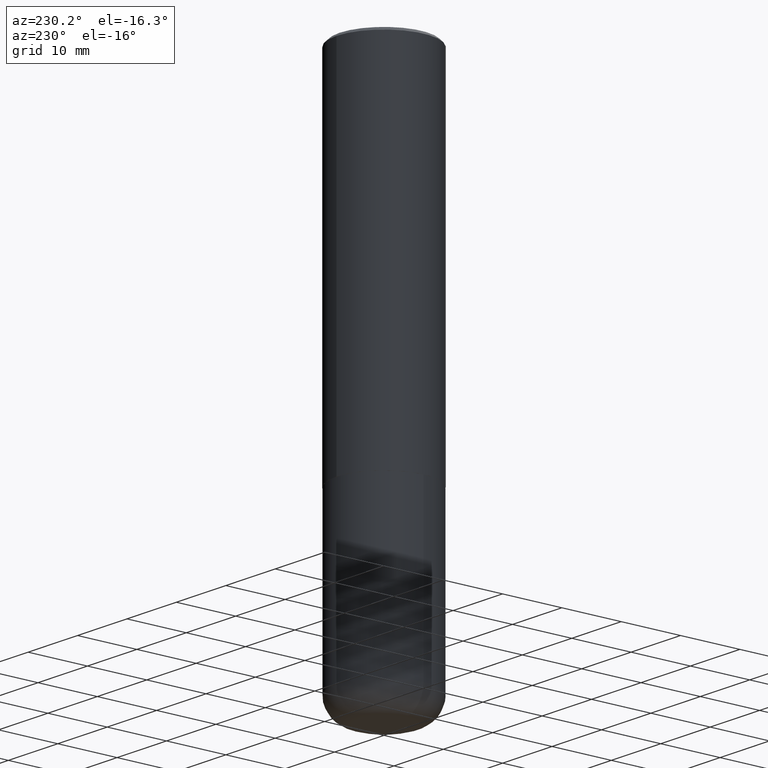
[diagram: clean part render]
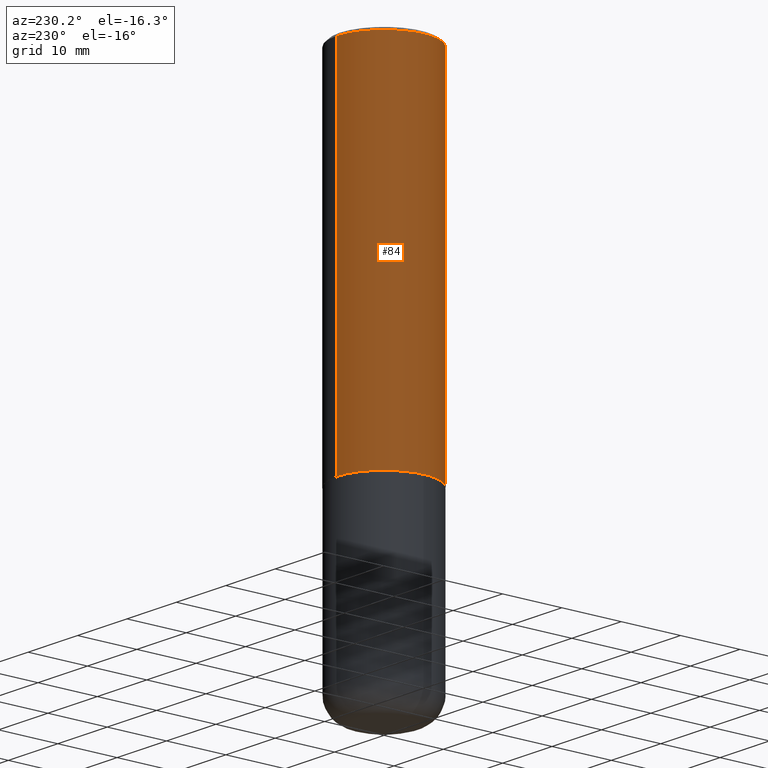
[diagram: same view with one face highlighted and labeled with its STEP entity id]
A machine part, auxiliary view. The second image highlights one B-rep face of the part: STEP entity #84.
In plain terms, the highlighted cylindrical surface (partial cylindrical patch) has radius 7.9997 mm, axis along (-0, 0, 1).
Its self-contained STEP definition (entity closure, byte-faithful):
#4 = DIRECTION ( 'NONE',  ( -2.443050816129427755E-29, 3.494944038226367750E-15, 1.000000000000000000 ) ) ;
#7 = VECTOR ( 'NONE', #64, 39.37007874015748143 ) ;
#13 = AXIS2_PLACEMENT_3D ( 'NONE', #304, #334, #16 ) ;
#16 = DIRECTION ( 'NONE',  ( -6.982962677686264344E-15, -1.000000000000000000, 3.494944038226367355E-15 ) ) ;
#40 = CARTESIAN_POINT ( 'NONE',  ( 2.199284095337290265E-15, 0.3149500000000000077, -0.02000000000000118697 ) ) ;
#51 = CARTESIAN_POINT ( 'NONE',  ( 4.886101632258876704E-31, -6.989888076452765624E-17, -0.02000000000000008715 ) ) ;
#59 = EDGE_LOOP ( 'NONE', ( #370, #166, #286, #155 ) ) ;
#64 = DIRECTION ( 'NONE',  ( -2.443050816129427755E-29, 3.494944038226367750E-15, 1.000000000000000000 ) ) ;
#77 = EDGE_CURVE ( 'NONE', #85, #93, #402, .T. ) ;
#84 = ADVANCED_FACE ( 'NONE', ( #195 ), #234, .T. ) ;
#85 = VERTEX_POINT ( 'NONE', #236 ) ;
#88 = CARTESIAN_POINT ( 'NONE',  ( -2.199284095337233467E-15, -0.3149500000000085564, -2.361199999999998411 ) ) ;
#93 = VERTEX_POINT ( 'NONE', #40 ) ;
#103 = DIRECTION ( 'NONE',  ( -2.443050816129427755E-29, 3.494944038226367750E-15, 1.000000000000000000 ) ) ;
#109 = CIRCLE ( 'NONE', #342, 0.3149500000000002853 ) ;
#115 = CARTESIAN_POINT ( 'NONE',  ( 5.768531587044804082E-29, -8.252261863060098117E-15, -2.361199999999999299 ) ) ;
#152 = AXIS2_PLACEMENT_3D ( 'NONE', #51, #103, #174 ) ;
#155 = ORIENTED_EDGE ( 'NONE', *, *, #218, .F. ) ;
#166 = ORIENTED_EDGE ( 'NONE', *, *, #191, .T. ) ;
#174 = DIRECTION ( 'NONE',  ( -6.982962677686265922E-15, -1.000000000000000000, 3.496670018878888311E-15 ) ) ;
#177 = CARTESIAN_POINT ( 'NONE',  ( -2.160713844398143757E-15, -0.3149500000000001743, -0.01999999999999898387 ) ) ;
#191 = EDGE_CURVE ( 'NONE', #85, #367, #109, .T. ) ;
#195 = FACE_OUTER_BOUND ( 'NONE', #59, .T. ) ;
#218 = EDGE_CURVE ( 'NONE', #93, #321, #264, .T. ) ;
#223 = CARTESIAN_POINT ( 'NONE',  ( 2.237854346276435985E-15, 0.3149500000000001743, -1.100732624839394981E-15 ) ) ;
#234 = CYLINDRICAL_SURFACE ( 'NONE', #13, 0.3149500000000001743 ) ;
#236 = CARTESIAN_POINT ( 'NONE',  ( 2.237854346276465567E-15, 0.3149499999999920141, -2.361200000000000632 ) ) ;
#237 = VECTOR ( 'NONE', #245, 39.37007874015748143 ) ;
#245 = DIRECTION ( 'NONE',  ( -2.443050816129427755E-29, 3.494944038226367750E-15, 1.000000000000000000 ) ) ;
#264 = CIRCLE ( 'NONE', #152, 0.3149500000000000632 ) ;
#268 = DIRECTION ( 'NONE',  ( -6.982962677686265922E-15, -1.000000000000000000, 3.469564049740290009E-15 ) ) ;
#286 = ORIENTED_EDGE ( 'NONE', *, *, #406, .T. ) ;
#292 = LINE ( 'NONE', #412, #237 ) ;
#304 = CARTESIAN_POINT ( 'NONE',  ( 0.000000000000000000, 0.000000000000000000, 0.000000000000000000 ) ) ;
#321 = VERTEX_POINT ( 'NONE', #177 ) ;
#334 = DIRECTION ( 'NONE',  ( -2.443050816129427755E-29, 3.494944038226367750E-15, 1.000000000000000000 ) ) ;
#342 = AXIS2_PLACEMENT_3D ( 'NONE', #115, #4, #268 ) ;
#367 = VERTEX_POINT ( 'NONE', #88 ) ;
#370 = ORIENTED_EDGE ( 'NONE', *, *, #77, .F. ) ;
#402 = LINE ( 'NONE', #223, #7 ) ;
#406 = EDGE_CURVE ( 'NONE', #367, #321, #292, .T. ) ;
#412 = CARTESIAN_POINT ( 'NONE',  ( -2.199284095337290265E-15, -0.3149500000000001743, 1.100732624839394981E-15 ) ) ;